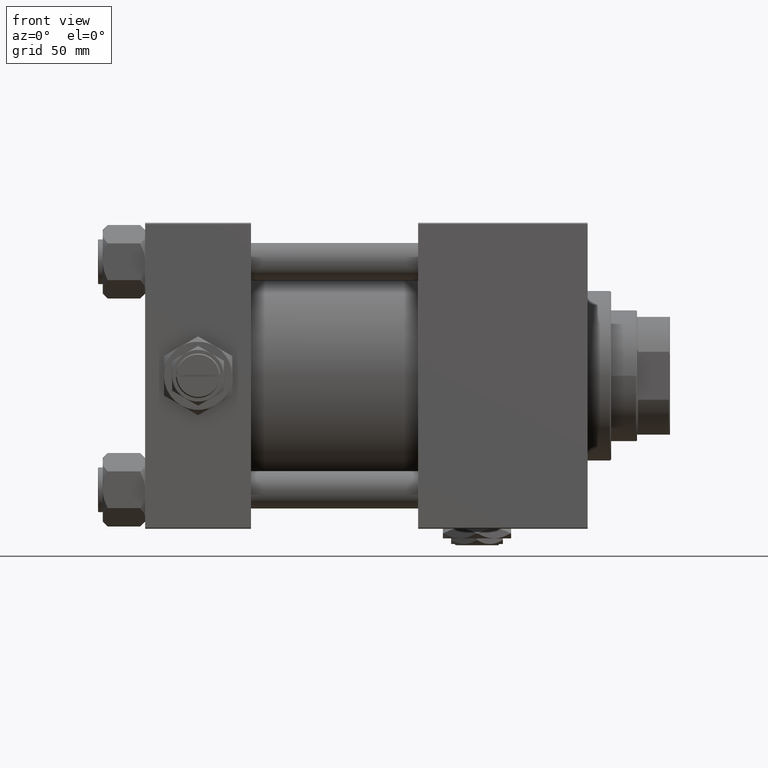
[diagram: clean part render]
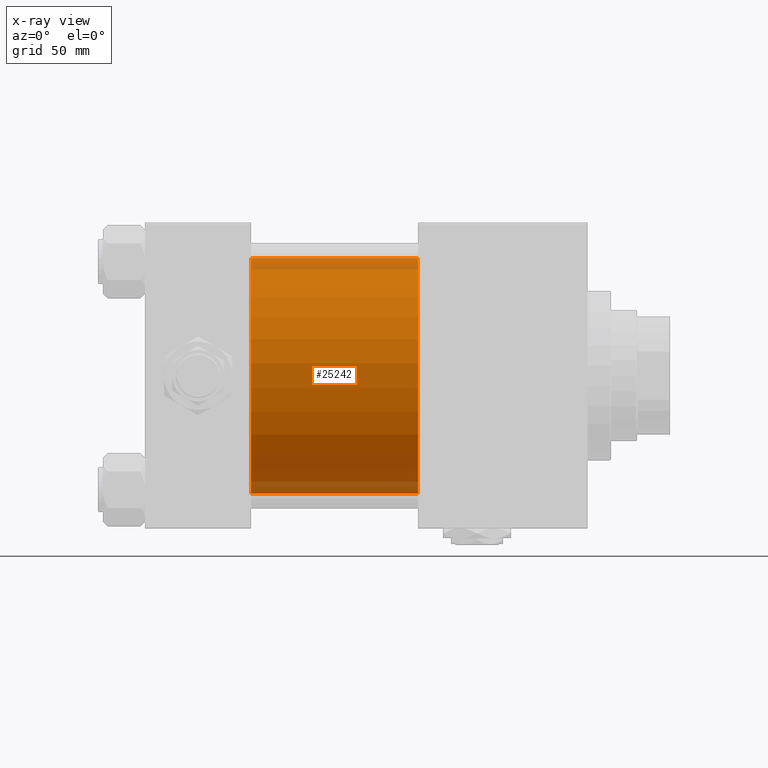
[diagram: x-ray — body ghosted, one internal face saturated and labeled with its STEP entity id]
A machine part, front view, then the same camera in x-ray: the body is ghosted and one INTERNAL B-rep face — a face not visible from any outside direction — is saturated and labeled: STEP entity #25242.
In plain terms, the highlighted cylindrical surface (partial cylindrical patch) has radius 50 mm, axis along (-1, -0, -0).
Its self-contained STEP definition (entity closure, byte-faithful):
#68 = DIRECTION ( 'NONE',  ( -1.000000000000000000, -0.000000000000000000, -0.000000000000000000 ) ) ;
#4294 = DIRECTION ( 'NONE',  ( -1.000000000000000000, -0.000000000000000000, -0.000000000000000000 ) ) ;
#5733 = DIRECTION ( 'NONE',  ( 0.000000000000000000, 0.000000000000000000, -1.000000000000000000 ) ) ;
#8138 = CIRCLE ( 'NONE', #48200, 50.00000000000000000 ) ;
#9726 = DIRECTION ( 'NONE',  ( 1.000000000000000000, 0.000000000000000000, 0.000000000000000000 ) ) ;
#10177 = VERTEX_POINT ( 'NONE', #13246 ) ;
#10512 = DIRECTION ( 'NONE',  ( -1.000000000000000000, -0.000000000000000000, -0.000000000000000000 ) ) ;
#11545 = LINE ( 'NONE', #52116, #38674 ) ;
#12241 = VERTEX_POINT ( 'NONE', #34008 ) ;
#13246 = CARTESIAN_POINT ( 'NONE',  ( 115.9999999999999858, -2.602085213965210642E-15, 50.00000000000000000 ) ) ;
#14035 = DIRECTION ( 'NONE',  ( 0.000000000000000000, 0.000000000000000000, -1.000000000000000000 ) ) ;
#15061 = LINE ( 'NONE', #20291, #45187 ) ;
#16002 = EDGE_LOOP ( 'NONE', ( #30522, #23493, #27248, #18095 ) ) ;
#16596 = CARTESIAN_POINT ( 'NONE',  ( 45.00000000000000000, -2.602085213965210642E-15, 50.00000000000000000 ) ) ;
#18095 = ORIENTED_EDGE ( 'NONE', *, *, #50591, .F. ) ;
#19062 = CARTESIAN_POINT ( 'NONE',  ( 115.9999999999999858, 3.521148781771555838E-15, -50.00000000000000000 ) ) ;
#20291 = CARTESIAN_POINT ( 'NONE',  ( 115.9999999999999858, -2.602085213965210642E-15, 50.00000000000000000 ) ) ;
#21983 = CARTESIAN_POINT ( 'NONE',  ( 115.9999999999999858, -2.602085213965210642E-15, 0.000000000000000000 ) ) ;
#22193 = VERTEX_POINT ( 'NONE', #16596 ) ;
#22519 = CIRCLE ( 'NONE', #52371, 50.00000000000000000 ) ;
#23493 = ORIENTED_EDGE ( 'NONE', *, *, #28867, .T. ) ;
#25242 = ADVANCED_FACE ( 'NONE', ( #27309 ), #43585, .F. ) ;
#26571 = CARTESIAN_POINT ( 'NONE',  ( 45.00000000000000000, -2.602085213965210642E-15, 0.000000000000000000 ) ) ;
#27248 = ORIENTED_EDGE ( 'NONE', *, *, #32053, .F. ) ;
#27309 = FACE_OUTER_BOUND ( 'NONE', #16002, .T. ) ;
#27497 = AXIS2_PLACEMENT_3D ( 'NONE', #38772, #10512, #47606 ) ;
#28867 = EDGE_CURVE ( 'NONE', #38526, #12241, #11545, .T. ) ;
#30401 = EDGE_CURVE ( 'NONE', #10177, #38526, #22519, .T. ) ;
#30522 = ORIENTED_EDGE ( 'NONE', *, *, #30401, .T. ) ;
#32053 = EDGE_CURVE ( 'NONE', #22193, #12241, #8138, .T. ) ;
#34008 = CARTESIAN_POINT ( 'NONE',  ( 45.00000000000000000, 3.521148781771555838E-15, -50.00000000000000000 ) ) ;
#34297 = DIRECTION ( 'NONE',  ( 1.000000000000000000, 0.000000000000000000, 0.000000000000000000 ) ) ;
#38526 = VERTEX_POINT ( 'NONE', #19062 ) ;
#38674 = VECTOR ( 'NONE', #68, 1000.000000000000000 ) ;
#38772 = CARTESIAN_POINT ( 'NONE',  ( 115.9999999999999858, -2.602085213965210642E-15, 0.000000000000000000 ) ) ;
#43585 = CYLINDRICAL_SURFACE ( 'NONE', #27497, 50.00000000000000000 ) ;
#45187 = VECTOR ( 'NONE', #4294, 1000.000000000000000 ) ;
#47606 = DIRECTION ( 'NONE',  ( 0.000000000000000000, 0.000000000000000000, 1.000000000000000000 ) ) ;
#48200 = AXIS2_PLACEMENT_3D ( 'NONE', #26571, #34297, #14035 ) ;
#50591 = EDGE_CURVE ( 'NONE', #10177, #22193, #15061, .T. ) ;
#52116 = CARTESIAN_POINT ( 'NONE',  ( 115.9999999999999858, 3.521148781771555838E-15, -50.00000000000000000 ) ) ;
#52371 = AXIS2_PLACEMENT_3D ( 'NONE', #21983, #9726, #5733 ) ;